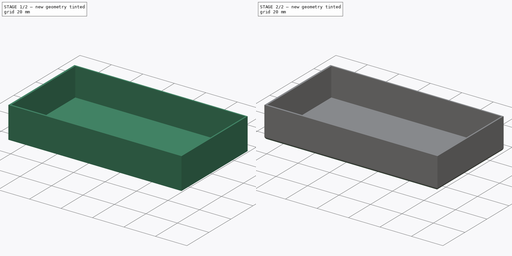
[diagram: build sequence overview — one tinted view per stage of 2, left to right]
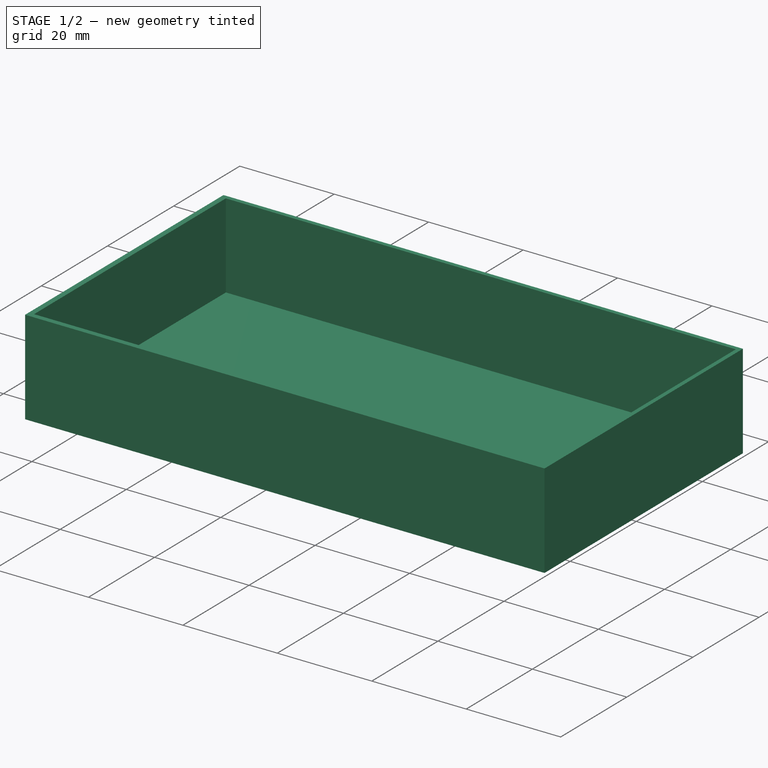
[diagram: stage 1 of 2 — iso view after this stage's code; geometry added in this stage tinted green]
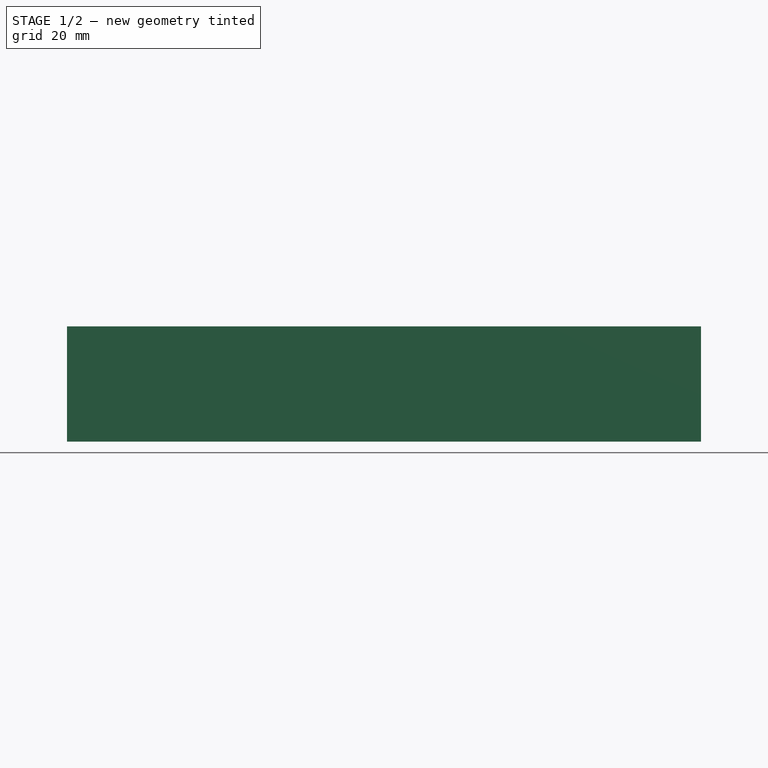
[diagram: stage 1 of 2 — front view after this stage's code; geometry added in this stage tinted green]
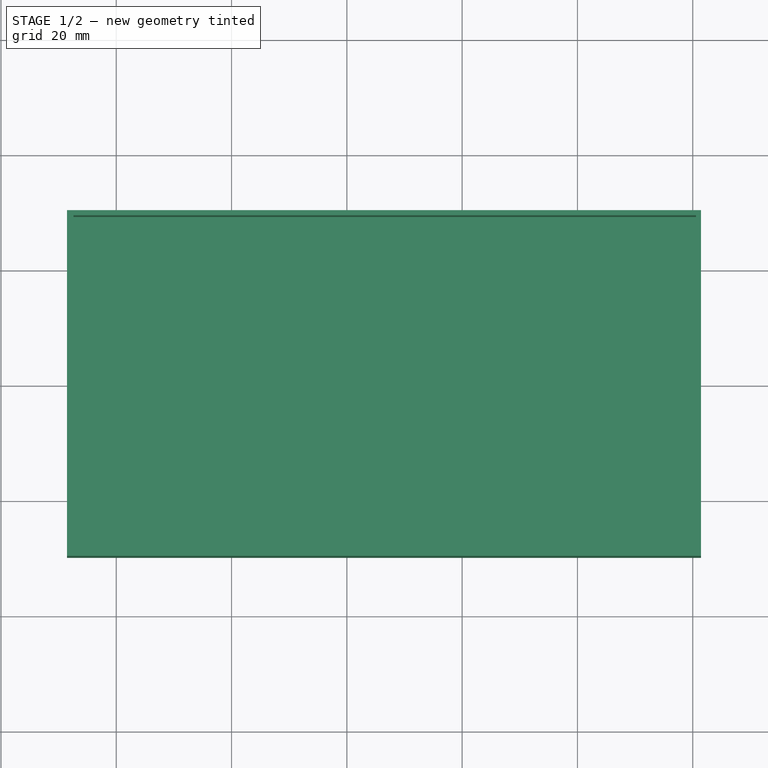
[diagram: stage 1 of 2 — top view after this stage's code; geometry added in this stage tinted green]
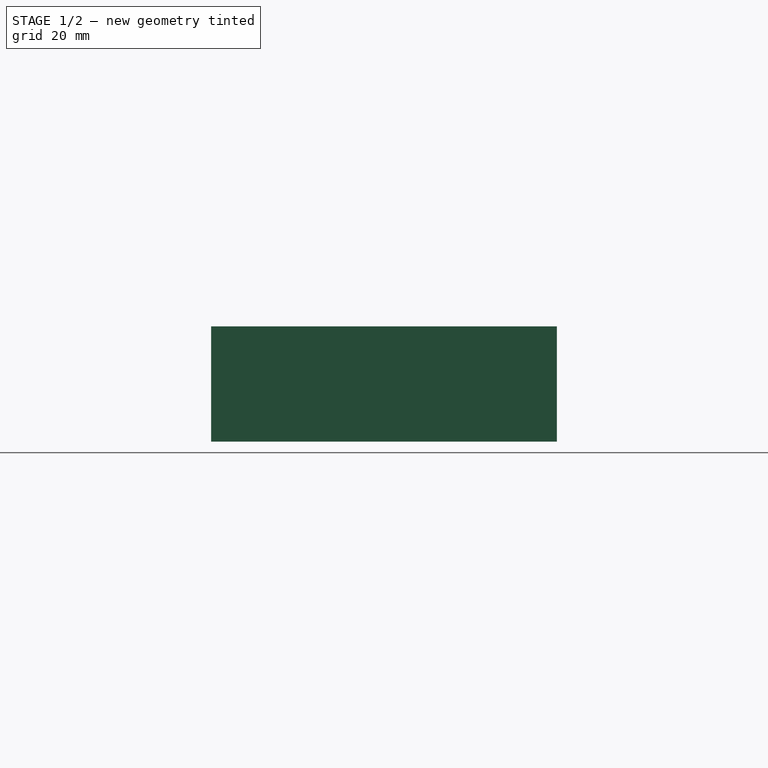
[diagram: stage 1 of 2 — right view after this stage's code; geometry added in this stage tinted green]
FCSTD DOCUMENT  (FreeCAD 0.18R16117 (Git))
Label: board-house
License: All rights reserved
LicenseURL: http://en.wikipedia.org/wiki/All_rights_reserved
objects: Sketcher::SketchObject×2, PartDesign::Pad×1, PartDesign::Pocket×1, PartDesign::Fillet×1, PartDesign::Body×1
note: 8 computed .brp shape members not serialized (recipe doc carries the construction recipe); baked Part::Feature solids carry a one-line shape summary decoded from their .brp

FEATURE [Sketcher::SketchObject] Sketch
  MapMode = 5
  Support = -> [XY_Plane]
  sketch-geometry (4):
    g0: LineSegment StartX=-8.55599 StartY=10.1874 StartZ=0 EndX=101.444 EndY=10.1874 EndZ=0
    g1: LineSegment StartX=101.444 StartY=10.1874 StartZ=0 EndX=101.444 EndY=-49.8126 EndZ=0
    g2: LineSegment StartX=101.444 StartY=-49.8126 StartZ=0 EndX=-8.55599 EndY=-49.8126 EndZ=0
    g3: LineSegment StartX=-8.55599 StartY=-49.8126 StartZ=0 EndX=-8.55599 EndY=10.1874 EndZ=0
  constraints (10):
    c: Coincident(g0,g1)
    c: Coincident(g1,g2)
    c: Coincident(g2,g3)
    c: Coincident(g3,g0)
    c: Horizontal(g0)
    c: Horizontal(g2)
    c: Vertical(g1)
    c: Vertical(g3)
    c: Distance(g1) = 60
    c: Distance(g2) = 110
FEATURE [PartDesign::Pad] Pad
  Length = 20
  Length2 = 100
  Profile = -> Sketch
  Type = 0
FEATURE [Sketcher::SketchObject] Sketch001
  MapMode = 5
  Placement = pos=(0,0,20) rot=(0,0,1;0rad)
  Support = -> [Pad]
  sketch-geometry (4):
    g0: LineSegment StartX=-7.42762 StartY=9.29298 StartZ=0 EndX=100.572 EndY=9.29298 EndZ=0
    g1: LineSegment StartX=100.572 StartY=9.29298 StartZ=0 EndX=100.572 EndY=-48.707 EndZ=0
    g2: LineSegment StartX=100.572 StartY=-48.707 StartZ=0 EndX=-7.42762 EndY=-48.707 EndZ=0
    g3: LineSegment StartX=-7.42762 StartY=-48.707 StartZ=0 EndX=-7.42762 EndY=9.29298 EndZ=0
  constraints (10):
    c: Coincident(g0,g1)
    c: Coincident(g1,g2)
    c: Coincident(g2,g3)
    c: Coincident(g3,g0)
    c: Horizontal(g0)
    c: Horizontal(g2)
    c: Vertical(g1)
    c: Vertical(g3)
    c: Distance(g0) = 108
    c: Distance(g1) = 58
FEATURE [PartDesign::Pocket] Pocket
  BaseFeature = -> Pad
  Length = 18
  Length2 = 100
  Profile = -> Sketch001
  Type = 0
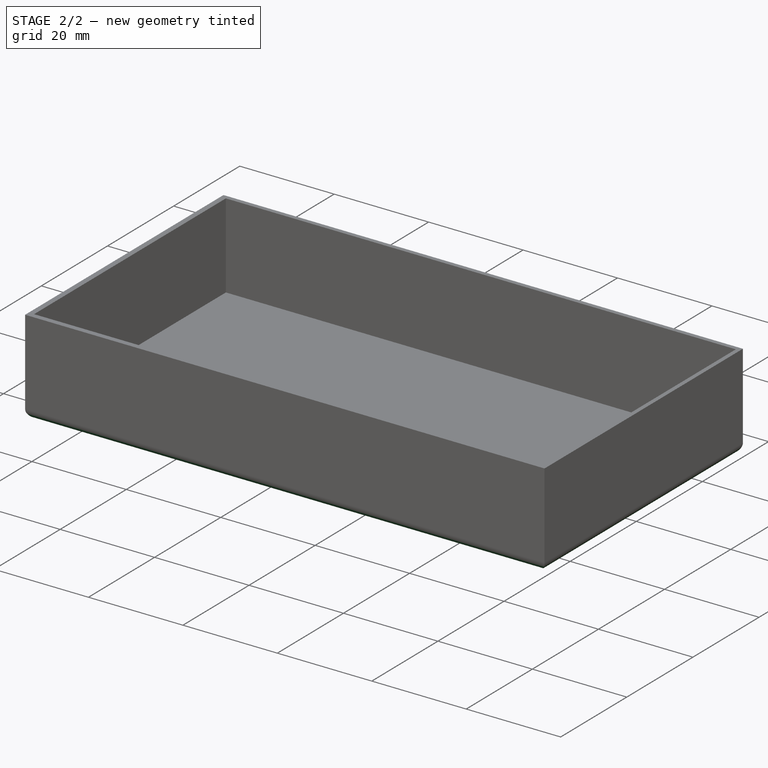
[diagram: stage 2 of 2 — iso view after this stage's code; geometry added in this stage tinted green]
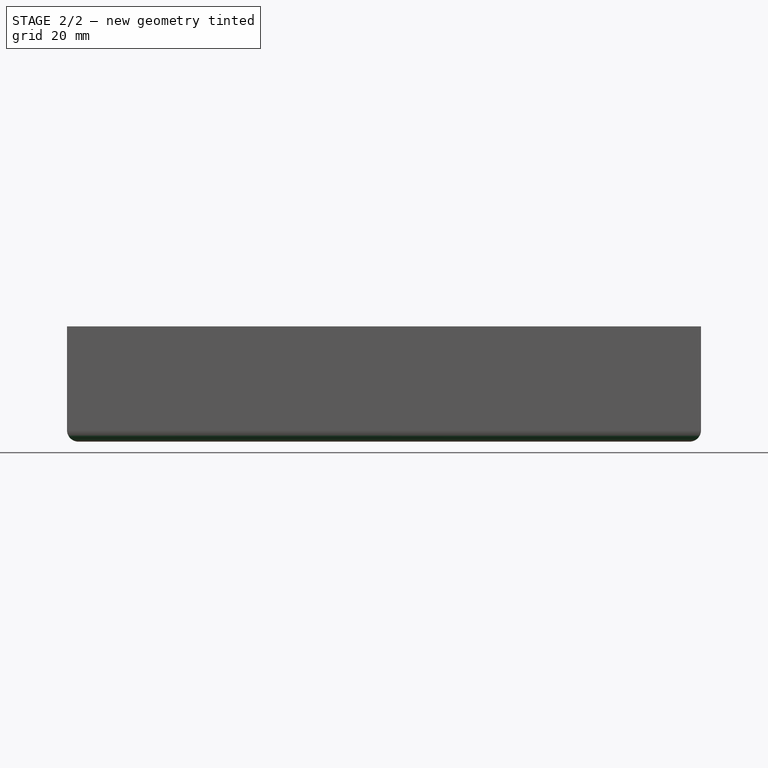
[diagram: stage 2 of 2 — front view after this stage's code; geometry added in this stage tinted green]
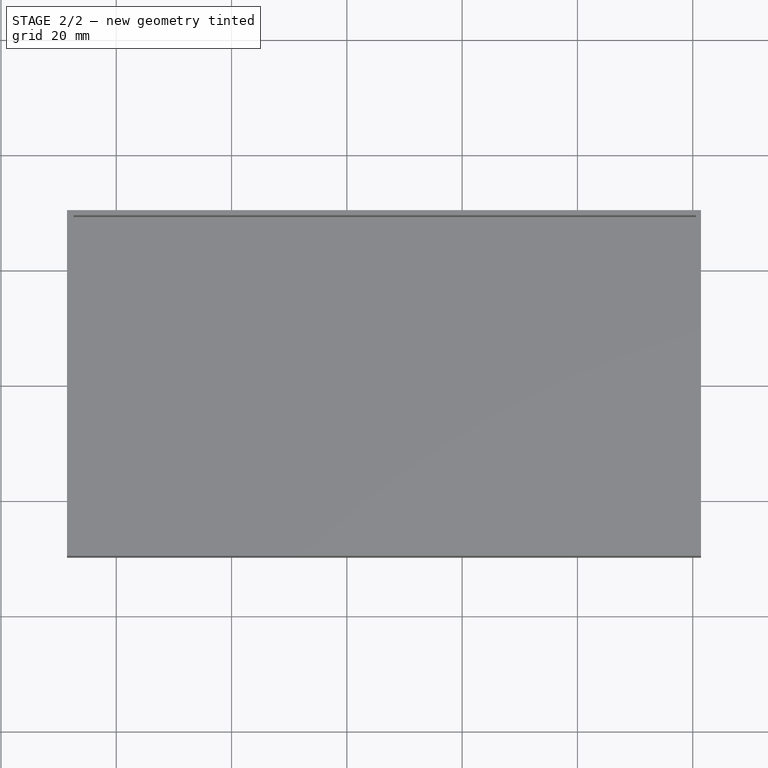
[diagram: stage 2 of 2 — top view after this stage's code; geometry added in this stage tinted green]
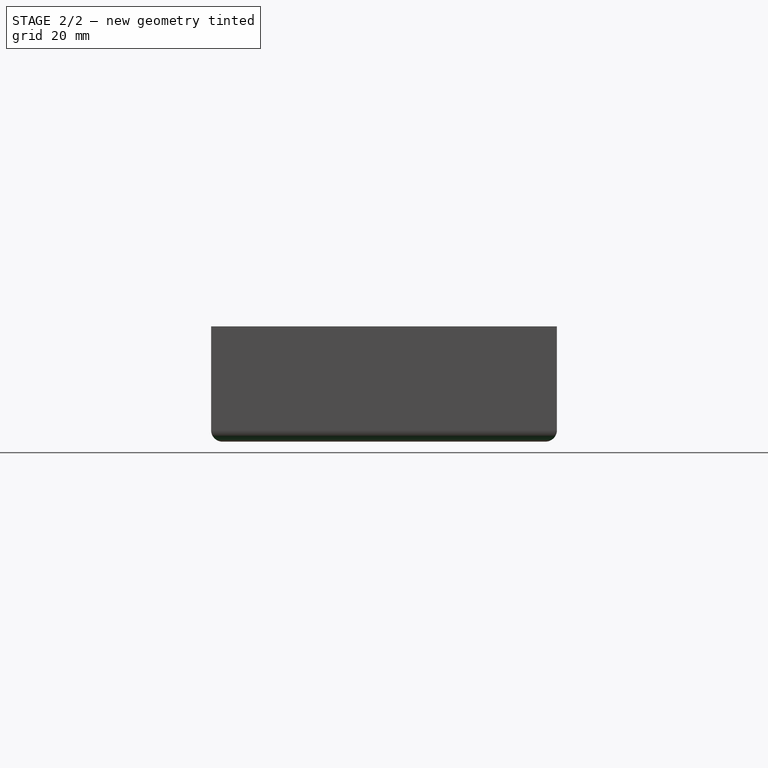
[diagram: stage 2 of 2 — right view after this stage's code; geometry added in this stage tinted green]
FEATURE [PartDesign::Fillet] Fillet
  Base = -> Pocket [Face4]
  BaseFeature = -> Pocket
  Radius = 2
FEATURE [PartDesign::Body] Body
  Group = -> [Sketch,Pad,Sketch001,Pocket,Fillet]
  Origin = -> Origin
  Tip = -> Fillet
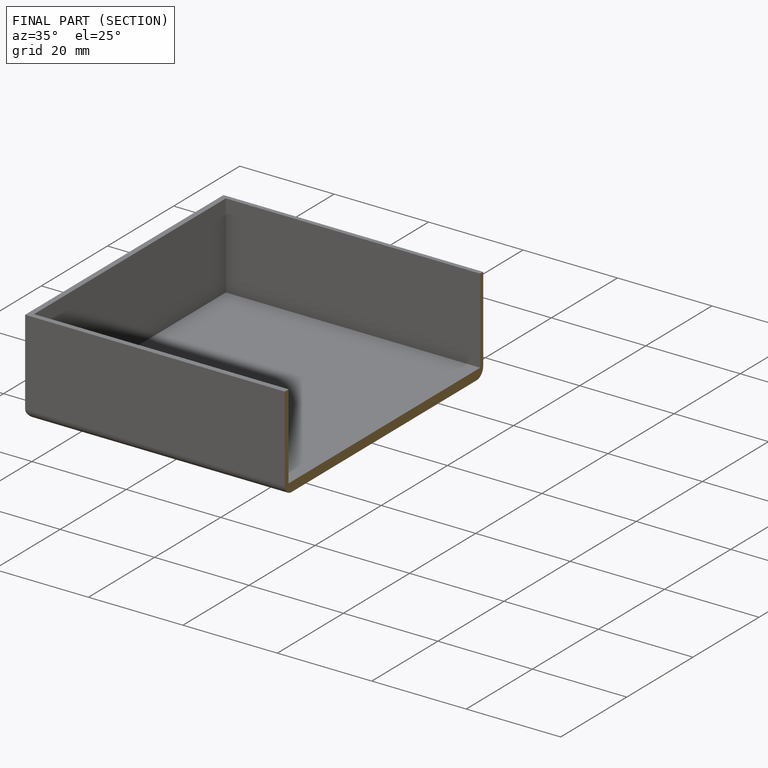
[diagram: finished part — half-section view (interior)]
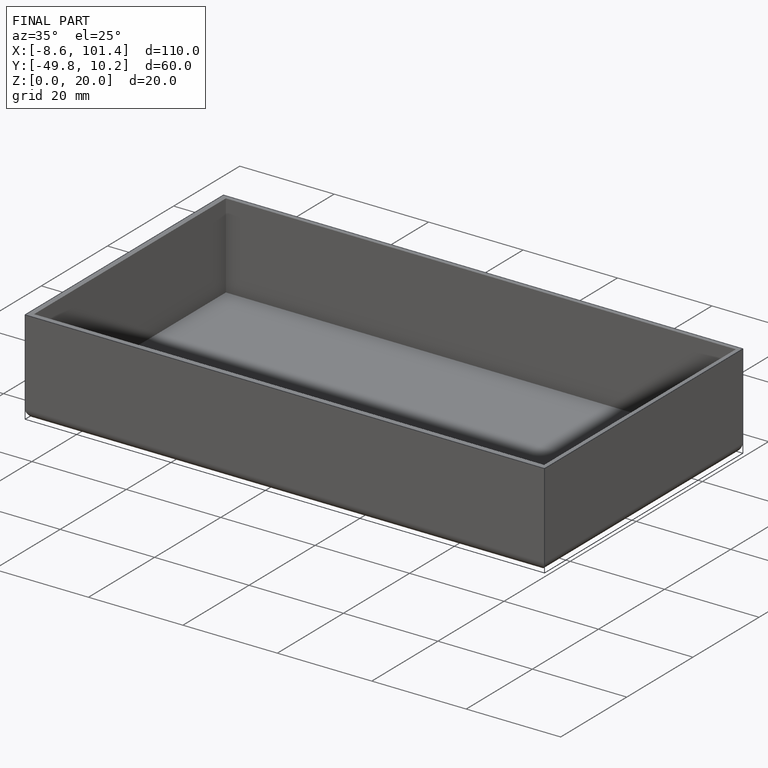
[diagram: finished part — iso view with bounding-box wireframe]
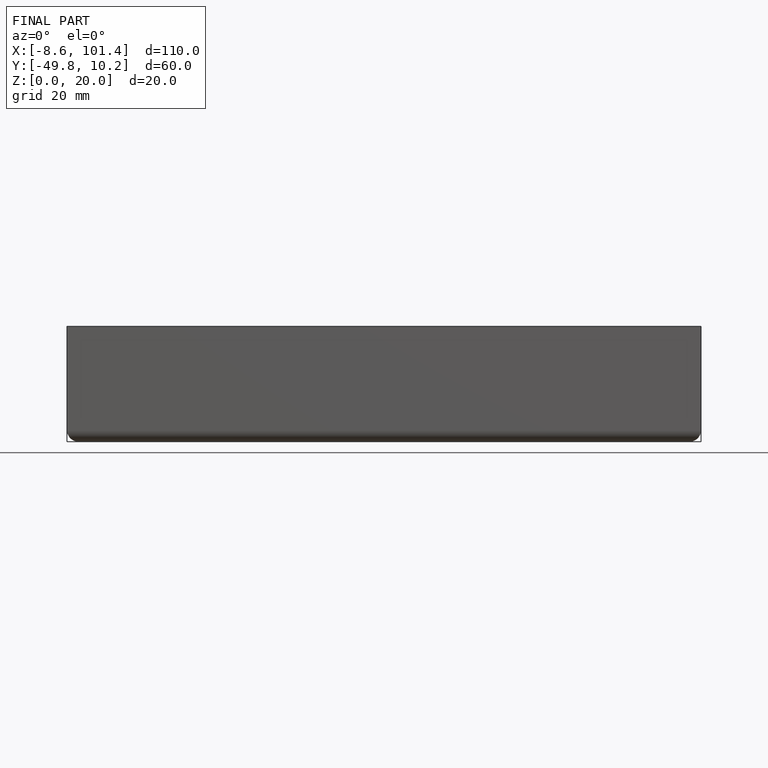
[diagram: finished part — front view with bounding-box wireframe]
